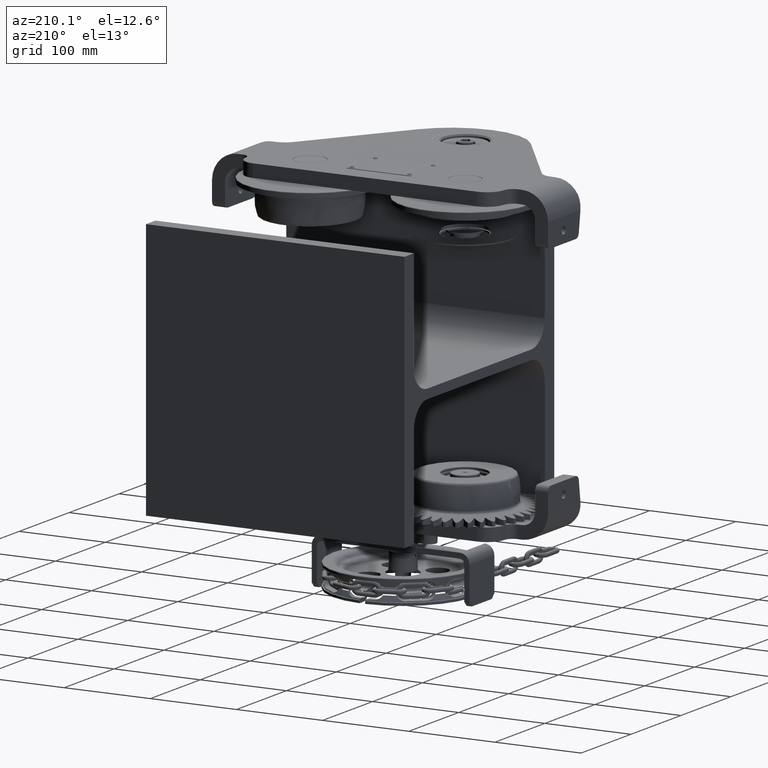
[diagram: clean part render]
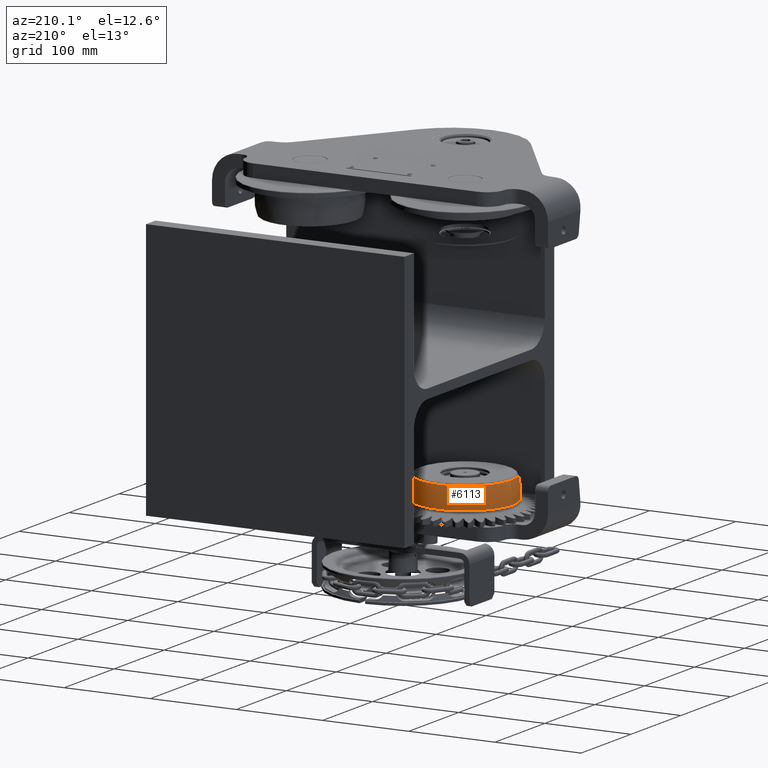
[diagram: same view with one face highlighted and labeled with its STEP entity id]
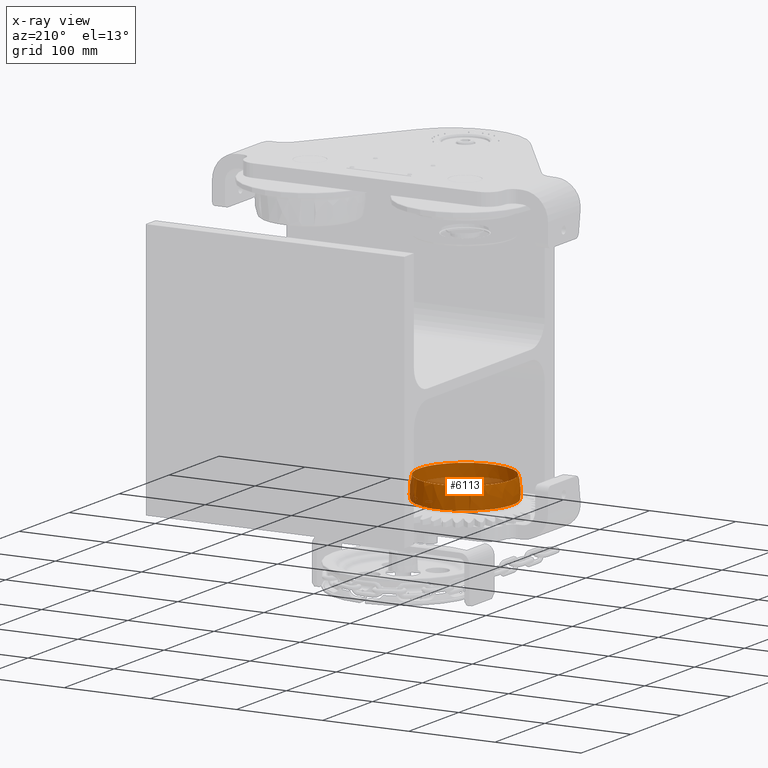
[diagram: x-ray of the same camera — body ghosted, the highlighted face saturated]
A machine part, auxiliary view. The second image highlights one B-rep face of the part: STEP entity #6113.
The next image is the same camera in x-ray: the body ghosted, the highlighted face saturated — about 13% of this face is hidden behind the body in this view.
In plain terms, the highlighted spherical surface has radius 56 mm.
Its self-contained STEP definition (entity closure, byte-faithful):
#3510 = AXIS2_PLACEMENT_3D ( 'NONE', #8116, #50147, #49753 ) ;
#6113 = ADVANCED_FACE ( 'NONE', ( #51446, #9348 ), #17362, .T. ) ;
#8116 = CARTESIAN_POINT ( 'NONE',  ( -89.99999999999997200, -74.99999999999994300, -149.2258411342691300 ) ) ;
#9348 = FACE_OUTER_BOUND ( 'NONE', #56700, .T. ) ;
#16662 = DIRECTION ( 'NONE',  ( 0.0000000000000000000, 1.000000000000000000, 0.0000000000000000000 ) ) ;
#17362 = SPHERICAL_SURFACE ( 'NONE', #55769, 56.00000000000000700 ) ;
#18539 = EDGE_LOOP ( 'NONE', ( #43249 ) ) ;
#20828 = CIRCLE ( 'NONE', #23363, 53.38725172927907900 ) ;
#23336 = CIRCLE ( 'NONE', #3510, 55.39255850413273700 ) ;
#23363 = AXIS2_PLACEMENT_3D ( 'NONE', #36197, #54988, #49978 ) ;
#28973 = EDGE_CURVE ( 'NONE', #51773, #51773, #20828, .T. ) ;
#34596 = CARTESIAN_POINT ( 'NONE',  ( -89.99999999999997200, -74.99999999999994300, -141.0000000000000300 ) ) ;
#35281 = ORIENTED_EDGE ( 'NONE', *, *, #28973, .T. ) ;
#36082 = CARTESIAN_POINT ( 'NONE',  ( -143.3872517292790600, -74.99999999999994300, -124.0943396226415600 ) ) ;
#36197 = CARTESIAN_POINT ( 'NONE',  ( -89.99999999999997200, -74.99999999999994300, -124.0943396226415600 ) ) ;
#38704 = CARTESIAN_POINT ( 'NONE',  ( -34.60744149586723500, -74.99999999999994300, -149.2258411342691300 ) ) ;
#38709 = VERTEX_POINT ( 'NONE', #38704 ) ;
#43249 = ORIENTED_EDGE ( 'NONE', *, *, #52388, .T. ) ;
#48997 = DIRECTION ( 'NONE',  ( 1.000000000000000000, -0.0000000000000000000, 0.0000000000000000000 ) ) ;
#49753 = DIRECTION ( 'NONE',  ( 1.000000000000000000, 0.0000000000000000000, 0.0000000000000000000 ) ) ;
#49978 = DIRECTION ( 'NONE',  ( -1.000000000000000000, 0.0000000000000000000, 0.0000000000000000000 ) ) ;
#50147 = DIRECTION ( 'NONE',  ( 0.0000000000000000000, 0.0000000000000000000, 1.000000000000000000 ) ) ;
#51446 = FACE_OUTER_BOUND ( 'NONE', #18539, .T. ) ;
#51773 = VERTEX_POINT ( 'NONE', #36082 ) ;
#52388 = EDGE_CURVE ( 'NONE', #38709, #38709, #23336, .T. ) ;
#54988 = DIRECTION ( 'NONE',  ( 0.0000000000000000000, 0.0000000000000000000, -1.000000000000000000 ) ) ;
#55769 = AXIS2_PLACEMENT_3D ( 'NONE', #34596, #48997, #16662 ) ;
#56700 = EDGE_LOOP ( 'NONE', ( #35281 ) ) ;